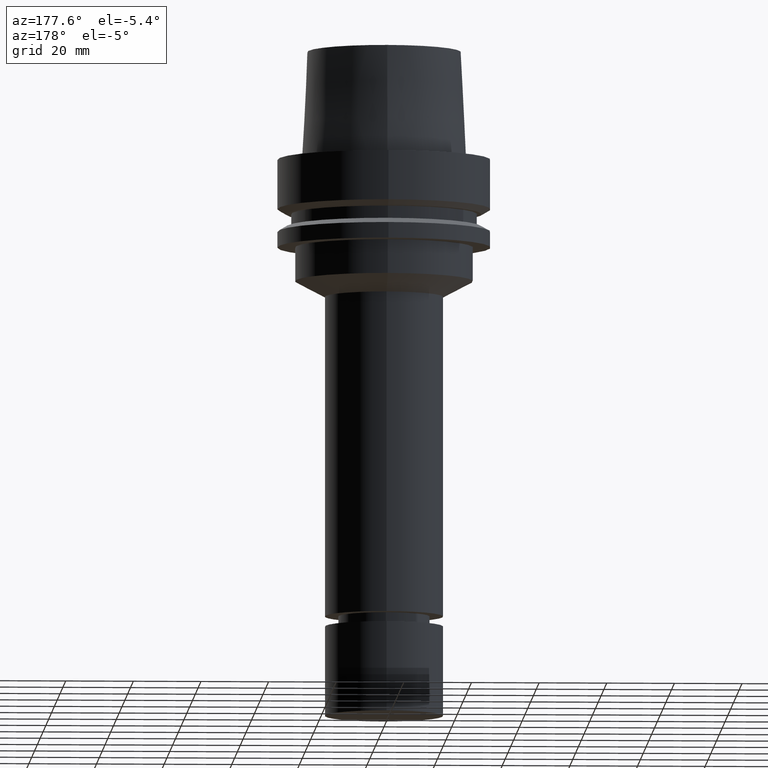
[diagram: clean part render]
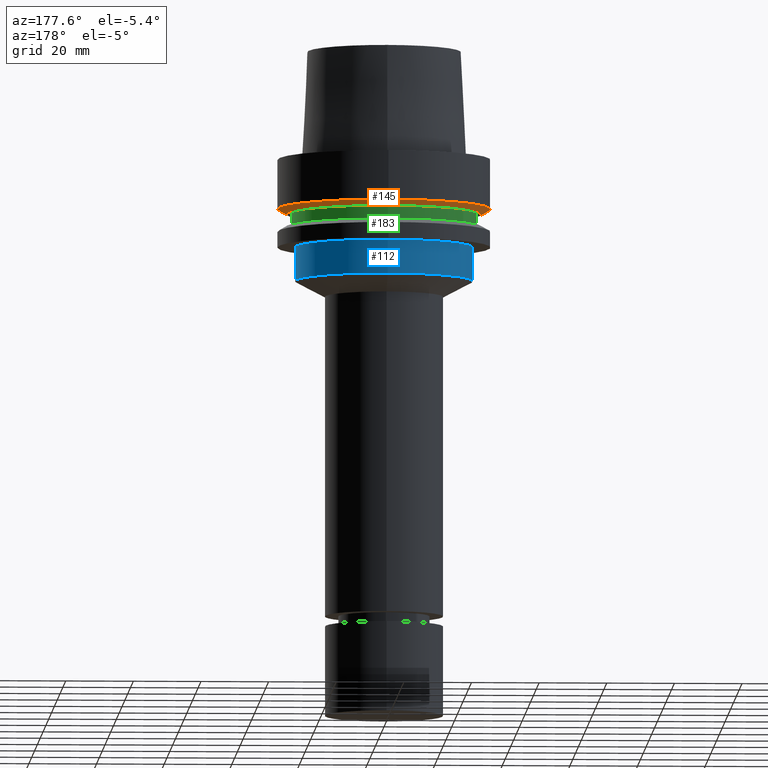
[diagram: same view with three faces highlighted in distinct colors, each labeled with its STEP entity id]
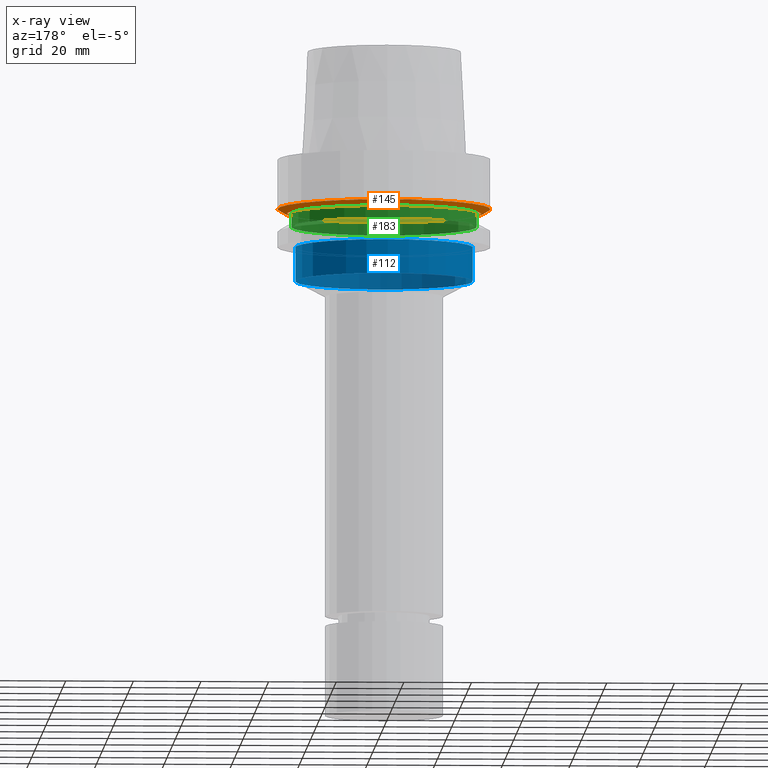
[diagram: x-ray of the same camera — body ghosted, the three highlighted faces saturated]
A machine part, auxiliary view with three faces highlighted in distinct colors.
The next image is the same camera in x-ray (body ghosted, the three faces saturated) — at least one of them is partly hidden behind the body in this view.
Their STEP definitions:

[orange] entity #145 — the highlighted conical surface has half-angle 60 deg.
#82=EDGE_CURVE('Unnamed[1]',#220,#220,#221,.T.);
#145=ADVANCED_FACE('Unnamed[1]',(#316,#317),#318,.T.);
#171=EDGE_CURVE('Unnamed[1]',#359,#359,#360,.T.);
#220=VERTEX_POINT('',#413);
#221=CIRCLE('',#414,28.8975952641919);
#316=FACE_BOUND('',#533,.T.);
#317=FACE_BOUND('',#534,.T.);
#318=CONICAL_SURFACE('',#535,30.1987976320959,1.04719755119657);
#359=VERTEX_POINT('',#586);
#360=CIRCLE('',#587,31.5);
#413=CARTESIAN_POINT('',(9.87371481812551E-016,28.8975952641919,-16.125));
#414=AXIS2_PLACEMENT_3D('',#636,#637,#638);
#533=EDGE_LOOP('',(#741));
#534=EDGE_LOOP('',(#742));
#535=AXIS2_PLACEMENT_3D('',#743,#744,#745);
#586=CARTESIAN_POINT('',(8.95369947681261E-016,31.5,-14.6225009252407));
#587=AXIS2_PLACEMENT_3D('',#791,#792,#793);
#636=CARTESIAN_POINT('',(9.87371481812552E-016,1.9747429636251E-015,-16.125));
#637=DIRECTION('',(-6.12323399573677E-017,-1.22464679914735E-016,1.0));
#638=DIRECTION('',(-1.23259516440783E-032,1.0,1.22464679914735E-016));
#741=ORIENTED_EDGE('',*,*,#171,.F.);
#742=ORIENTED_EDGE('',*,*,#82,.T.);
#743=CARTESIAN_POINT('',(9.41370714746907E-016,1.88274142949381E-015,-15.3737504626203));
#744=DIRECTION('',(-6.12323399573677E-017,-1.22464679914735E-016,1.0));
#745=DIRECTION('',(-1.23259516440783E-032,1.0,1.22464679914735E-016));
#791=CARTESIAN_POINT('',(8.95369947681262E-016,1.79073989536252E-015,-14.6225009252407));
#792=DIRECTION('',(-6.12323399573677E-017,-1.22464679914735E-016,1.0));
#793=DIRECTION('',(-1.23259516440783E-032,1.0,1.22464679914735E-016));

[blue] entity #112 — the highlighted cylindrical surface (bore or boss wall) has radius 26.3 mm, axis along (-0, -0, 1).
#112=ADVANCED_FACE('Unnamed[1]',(#265,#266),#267,.T.);
#130=EDGE_CURVE('Unnamed[1]',#293,#293,#294,.T.);
#163=EDGE_CURVE('Unnamed[1]',#346,#346,#347,.T.);
#265=FACE_BOUND('',#470,.T.);
#266=FACE_BOUND('',#471,.T.);
#267=CYLINDRICAL_SURFACE('',#472,26.3);
#293=VERTEX_POINT('',#504);
#294=CIRCLE('',#505,26.3);
#346=VERTEX_POINT('',#570);
#347=CIRCLE('',#571,26.3);
#470=EDGE_LOOP('',(#686));
#471=EDGE_LOOP('',(#687));
#472=AXIS2_PLACEMENT_3D('',#688,#689,#690);
#504=CARTESIAN_POINT('',(1.59204083889154E-015,26.3,-25.9999999999997));
#505=AXIS2_PLACEMENT_3D('',#716,#717,#718);
#570=CARTESIAN_POINT('',(2.20436423846525E-015,26.3,-36.0000000000003));
#571=AXIS2_PLACEMENT_3D('',#776,#777,#778);
#686=ORIENTED_EDGE('',*,*,#130,.F.);
#687=ORIENTED_EDGE('',*,*,#163,.T.);
#688=CARTESIAN_POINT('',(1.8982025386784E-015,3.79640507735679E-015,-31.0));
#689=DIRECTION('',(-6.12323399573677E-017,-1.22464679914735E-016,1.0));
#690=DIRECTION('',(-1.23259516440783E-032,1.0,1.22464679914735E-016));
#716=CARTESIAN_POINT('',(1.59204083889154E-015,3.18408167778308E-015,-25.9999999999997));
#717=DIRECTION('',(-6.12323399573677E-017,-1.22464679914735E-016,1.0));
#718=DIRECTION('',(-1.23259516440783E-032,1.0,1.22464679914735E-016));
#776=CARTESIAN_POINT('',(2.20436423846525E-015,4.4087284769305E-015,-36.0000000000003));
#777=DIRECTION('',(-6.12323399573677E-017,-1.22464679914735E-016,1.0));
#778=DIRECTION('',(-1.23259516440783E-032,1.0,1.22464679914735E-016));

[green] entity #183 — the highlighted cylindrical surface (bore or boss wall) has radius 27.5 mm, axis along (-0, -0, 1).
#89=EDGE_CURVE('Unnamed[1]',#230,#230,#231,.T.);
#96=EDGE_CURVE('Unnamed[1]',#241,#241,#242,.T.);
#183=ADVANCED_FACE('Unnamed[1]',(#375,#376),#377,.T.);
#230=VERTEX_POINT('',#426);
#231=CIRCLE('',#427,27.5);
#241=VERTEX_POINT('',#440);
#242=CIRCLE('',#441,27.4999999999989);
#375=FACE_BOUND('',#606,.T.);
#376=FACE_BOUND('',#607,.T.);
#377=CYLINDRICAL_SURFACE('',#608,27.4999999999994);
#426=CARTESIAN_POINT('',(9.87371481812537E-016,27.5,-16.1249999999997));
#427=AXIS2_PLACEMENT_3D('',#647,#648,#649);
#440=CARTESIAN_POINT('',(1.21699275665276E-015,27.4999999999989,-19.8750000000013));
#441=AXIS2_PLACEMENT_3D('',#659,#660,#661);
#606=EDGE_LOOP('',(#805));
#607=EDGE_LOOP('',(#806));
#608=AXIS2_PLACEMENT_3D('',#807,#808,#809);
#647=CARTESIAN_POINT('',(9.87371481812538E-016,1.97474296362508E-015,-16.1249999999997));
#648=DIRECTION('',(-6.12323399573677E-017,-1.22464679914735E-016,1.0));
#649=DIRECTION('',(-1.23259516440783E-032,1.0,1.22464679914735E-016));
#659=CARTESIAN_POINT('',(1.21699275665276E-015,2.43398551330552E-015,-19.8750000000013));
#660=DIRECTION('',(-6.12323399573677E-017,-1.22464679914735E-016,1.0));
#661=DIRECTION('',(-1.23259516440783E-032,1.0,1.22464679914735E-016));
#805=ORIENTED_EDGE('',*,*,#89,.F.);
#806=ORIENTED_EDGE('',*,*,#96,.T.);
#807=CARTESIAN_POINT('',(1.10218211923265E-015,2.2043642384653E-015,-18.0000000000005));
#808=DIRECTION('',(-6.12323399573677E-017,-1.22464679914735E-016,1.0));
#809=DIRECTION('',(-1.23259516440783E-032,1.0,1.22464679914735E-016));